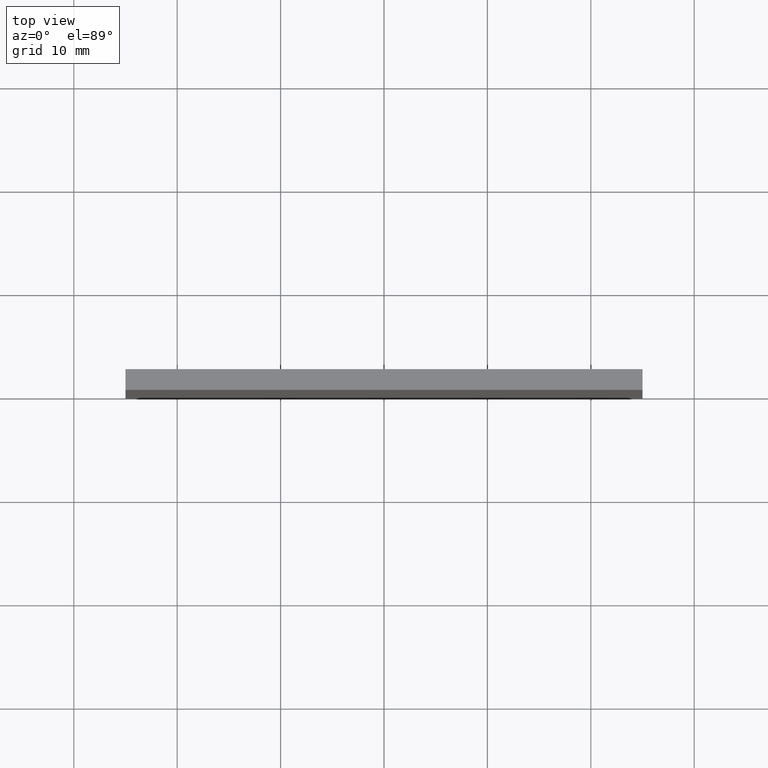
[diagram: clean part render]
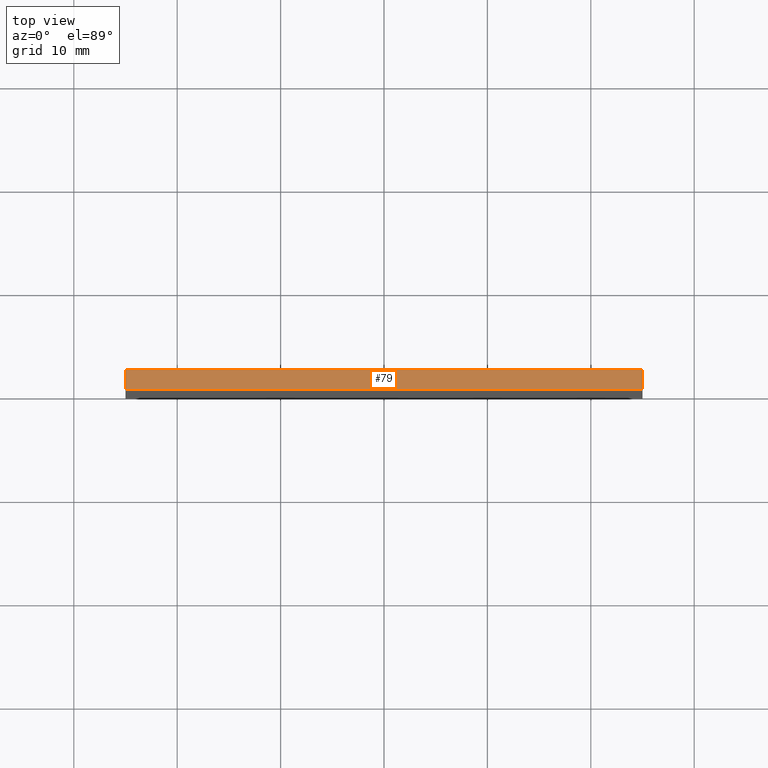
[diagram: same view with one face highlighted and labeled with its STEP entity id]
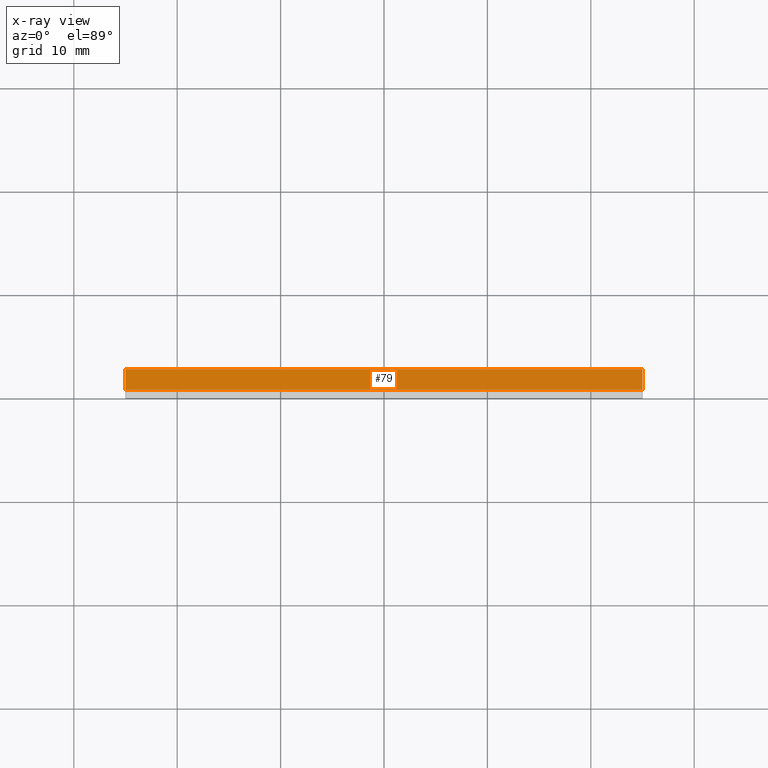
[diagram: x-ray of the same camera — body ghosted, the highlighted face saturated]
A machine part, top view. The second image highlights one B-rep face of the part: STEP entity #79.
The next image is the same camera in x-ray: the body ghosted, the highlighted face saturated — about 0% of this face is hidden behind the body in this view.
In plain terms, the highlighted planar face has unit normal (0, 0, -1).
Its self-contained STEP definition (entity closure, byte-faithful):
#17 = DIRECTION ( 'NONE',  ( -0.0000000000000000000, -1.000000000000000000, -0.0000000000000000000 ) ) ;
#18 = DIRECTION ( 'NONE',  ( -1.000000000000000000, 0.0000000000000000000, -0.0000000000000000000 ) ) ;
#19 = ORIENTED_EDGE ( 'NONE', *, *, #32, .T. ) ;
#32 = EDGE_CURVE ( 'NONE', #64, #92, #72, .T. ) ;
#38 = PLANE ( 'NONE',  #152 ) ;
#40 = VECTOR ( 'NONE', #53, 1000.000000000000000 ) ;
#41 = FACE_OUTER_BOUND ( 'NONE', #231, .T. ) ;
#53 = DIRECTION ( 'NONE',  ( 1.000000000000000000, 0.0000000000000000000, 0.0000000000000000000 ) ) ;
#57 = CARTESIAN_POINT ( 'NONE',  ( -24.99999999999999600, 2.000000000000000000, 25.00000000000000000 ) ) ;
#64 = VERTEX_POINT ( 'NONE', #145 ) ;
#65 = VERTEX_POINT ( 'NONE', #149 ) ;
#66 = CARTESIAN_POINT ( 'NONE',  ( -24.99999999999999600, 0.0000000000000000000, 25.00000000000000000 ) ) ;
#67 = VECTOR ( 'NONE', #156, 1000.000000000000000 ) ;
#72 = LINE ( 'NONE', #66, #40 ) ;
#79 = ADVANCED_FACE ( 'NONE', ( #41 ), #38, .F. ) ;
#85 = CARTESIAN_POINT ( 'NONE',  ( -24.99999999999999600, 2.000000000000000000, 25.00000000000000000 ) ) ;
#86 = DIRECTION ( 'NONE',  ( 0.0000000000000000000, 0.0000000000000000000, -1.000000000000000000 ) ) ;
#92 = VERTEX_POINT ( 'NONE', #93 ) ;
#93 = CARTESIAN_POINT ( 'NONE',  ( 25.00000000000000400, 0.0000000000000000000, 25.00000000000000000 ) ) ;
#106 = ORIENTED_EDGE ( 'NONE', *, *, #163, .T. ) ;
#109 = VECTOR ( 'NONE', #17, 1000.000000000000000 ) ;
#115 = LINE ( 'NONE', #127, #67 ) ;
#119 = ORIENTED_EDGE ( 'NONE', *, *, #138, .F. ) ;
#121 = ORIENTED_EDGE ( 'NONE', *, *, #144, .F. ) ;
#127 = CARTESIAN_POINT ( 'NONE',  ( -24.99999999999999600, 2.000000000000000000, 25.00000000000000000 ) ) ;
#138 = EDGE_CURVE ( 'NONE', #166, #65, #115, .T. ) ;
#144 = EDGE_CURVE ( 'NONE', #65, #92, #158, .T. ) ;
#145 = CARTESIAN_POINT ( 'NONE',  ( -24.99999999999999600, 0.0000000000000000000, 25.00000000000000000 ) ) ;
#149 = CARTESIAN_POINT ( 'NONE',  ( 25.00000000000000400, 2.000000000000000000, 25.00000000000000000 ) ) ;
#152 = AXIS2_PLACEMENT_3D ( 'NONE', #57, #86, #18 ) ;
#156 = DIRECTION ( 'NONE',  ( 1.000000000000000000, 0.0000000000000000000, 0.0000000000000000000 ) ) ;
#158 = LINE ( 'NONE', #201, #209 ) ;
#163 = EDGE_CURVE ( 'NONE', #166, #64, #196, .T. ) ;
#166 = VERTEX_POINT ( 'NONE', #85 ) ;
#196 = LINE ( 'NONE', #199, #109 ) ;
#199 = CARTESIAN_POINT ( 'NONE',  ( -24.99999999999999600, 2.000000000000000000, 25.00000000000000000 ) ) ;
#201 = CARTESIAN_POINT ( 'NONE',  ( 25.00000000000000400, 2.000000000000000000, 25.00000000000000000 ) ) ;
#209 = VECTOR ( 'NONE', #219, 1000.000000000000000 ) ;
#219 = DIRECTION ( 'NONE',  ( -0.0000000000000000000, -1.000000000000000000, -0.0000000000000000000 ) ) ;
#231 = EDGE_LOOP ( 'NONE', ( #19, #121, #119, #106 ) ) ;